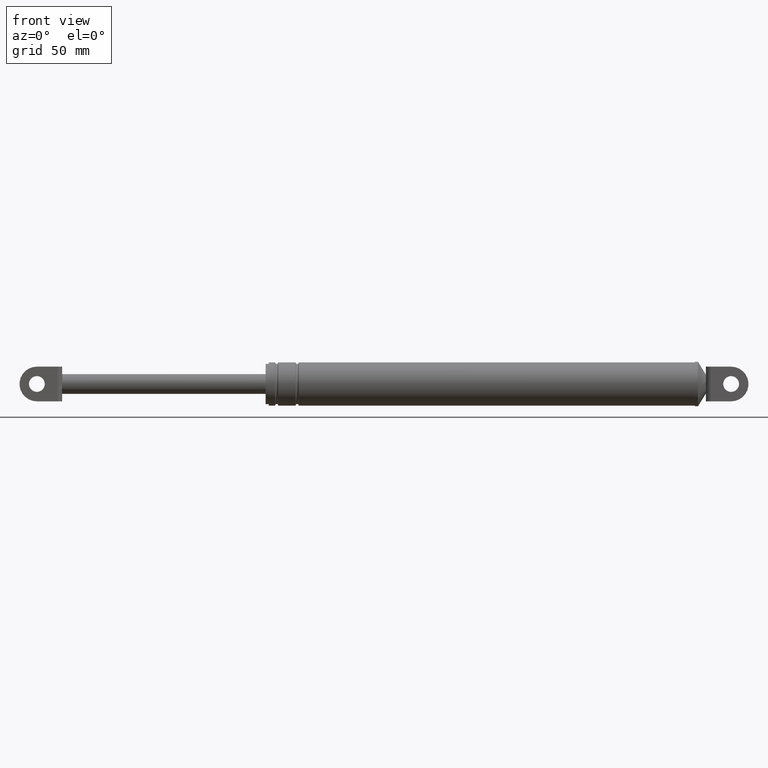
[diagram: clean part render]
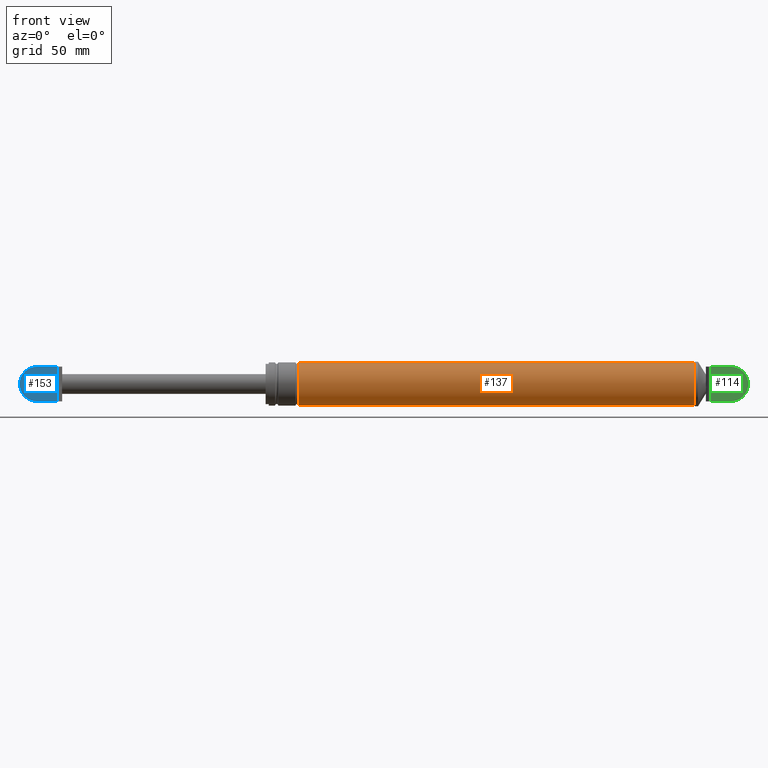
[diagram: same view with three faces highlighted in distinct colors, each labeled with its STEP entity id]
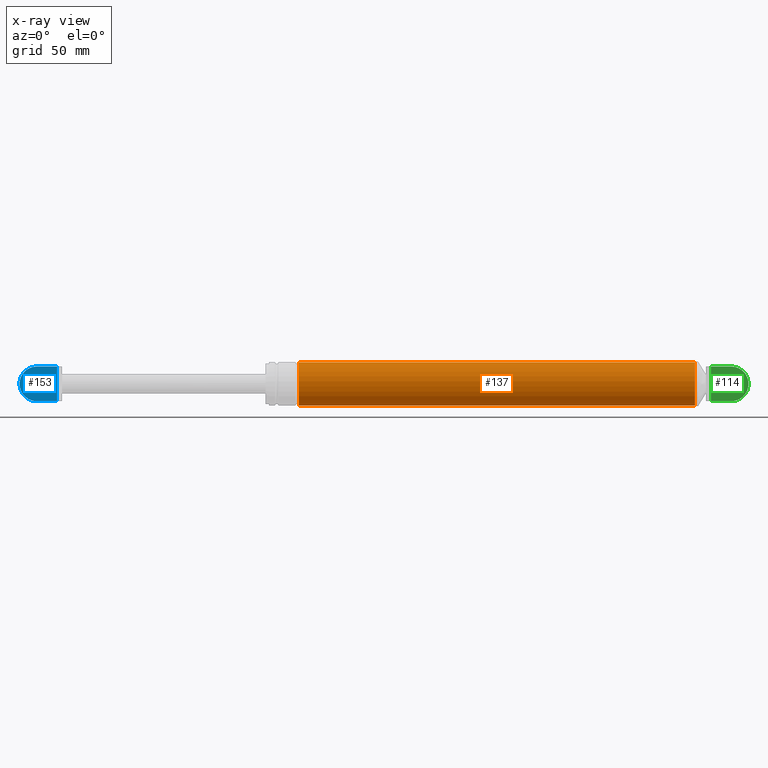
[diagram: x-ray of the same camera — body ghosted, the three highlighted faces saturated]
A machine part, front view with three faces highlighted in distinct colors.
The next image is the same camera in x-ray (body ghosted, the three faces saturated) — at least one of them is partly hidden behind the body in this view.
Their STEP definitions:

[orange] entity #137 — the highlighted cylindrical surface (edge-blend (fillet) strip) has radius 13.7 mm, axis along (-1, -0, -0).
#137=ADVANCED_FACE('',(#433),#432,.T.);
#432=CYLINDRICAL_SURFACE('',#1380,1.37000000000E+001);
#433=FACE_OUTER_BOUND('',#1381,.T.);
#1377=CARTESIAN_POINT('',(1.46675390861E+002,3.95008575888E-013,1.89728345508E+002));
#1378=DIRECTION('',(-1.00000000000E+000,-0.00000000000E+000,-0.00000000000E+000));
#1379=DIRECTION('',(0.00000000000E+000,2.88327427655E-014,1.00000000000E+000));
#1380=AXIS2_PLACEMENT_3D('',#1377,#1378,#1379);
#1381=EDGE_LOOP('',(#2235,#2236,#2237,#2238));
#2235=ORIENTED_EDGE('',*,*,#2467,.T.);
#2236=ORIENTED_EDGE('',*,*,#2490,.T.);
#2237=ORIENTED_EDGE('',*,*,#2492,.F.);
#2238=ORIENTED_EDGE('',*,*,#2491,.F.);
#2467=EDGE_CURVE('',#2895,#2894,#2902,.T.);
#2490=EDGE_CURVE('',#2894,#3045,#3053,.T.);
#2491=EDGE_CURVE('',#2895,#3046,#3059,.T.);
#2492=EDGE_CURVE('',#3046,#3045,#3065,.T.);
#2894=VERTEX_POINT('',#3822);
#2895=VERTEX_POINT('',#3823);
#2902=CIRCLE('',#3831,1.37000000000E+001);
#3045=VERTEX_POINT('',#3933);
#3046=VERTEX_POINT('',#3934);
#3053=(BOUNDED_CURVE() B_SPLINE_CURVE(1,(#3939,#3940),.UNSPECIFIED.,.F.,.F.) B_SPLINE_CURVE_WITH_KNOTS((2,2),(3.69003689851E-002,9.63099631073E-001),.UNSPECIFIED.) CURVE() GEOMETRIC_REPRESENTATION_ITEM() RATIONAL_B_SPLINE_CURVE((1.00000000000E+000,1.00000000000E+000)) REPRESENTATION_ITEM('') );
#3059=(BOUNDED_CURVE() B_SPLINE_CURVE(1,(#3941,#3942),.UNSPECIFIED.,.F.,.F.) B_SPLINE_CURVE_WITH_KNOTS((2,2),(3.69003690037E-002,9.63099630996E-001),.UNSPECIFIED.) CURVE() GEOMETRIC_REPRESENTATION_ITEM() RATIONAL_B_SPLINE_CURVE((7.50000000000E-001,7.50000000000E-001)) REPRESENTATION_ITEM('') );
#3065=CIRCLE('',#3946,1.37000000000E+001);
#3822=CARTESIAN_POINT('',(4.07675390861E+002,8.50282807126E-013,2.03428345508E+002));
#3823=CARTESIAN_POINT('',(4.07675390861E+002,-2.37694337870E-015,1.76028345508E+002));
#3828=CARTESIAN_POINT('',(4.07675390861E+002,4.23015369852E-013,1.89728345508E+002));
#3829=DIRECTION('',(-1.00000000000E+000,-2.93389539725E-015,-9.09492754956E-029));
#3830=DIRECTION('',(1.82407580425E-028,-3.11729944479E-014,-1.00000000000E+000));
#3831=AXIS2_PLACEMENT_3D('',#3828,#3829,#3830);
#3933=CARTESIAN_POINT('',(1.56675390861E+002,8.50874926073E-013,2.03428345508E+002));
#3934=CARTESIAN_POINT('',(1.56675390861E+002,-3.89268144094E-015,1.76028345508E+002));
#3939=CARTESIAN_POINT('',(4.07675390866E+002,7.90017151776E-013,2.03428345508E+002));
#3940=CARTESIAN_POINT('',(1.56675390840E+002,7.90017151776E-013,2.03428345508E+002));
#3941=CARTESIAN_POINT('',(4.07675390861E+002,0.00000000000E+000,1.76028345508E+002));
#3942=CARTESIAN_POINT('',(1.56675390861E+002,0.00000000000E+000,1.76028345508E+002));
#3943=CARTESIAN_POINT('',(1.56675390861E+002,4.22257500821E-013,1.89728345508E+002));
#3944=DIRECTION('',(-1.00000000000E+000,0.00000000000E+000,0.00000000000E+000));
#3945=DIRECTION('',(-0.00000000000E+000,-3.12283133552E-014,-1.00000000000E+000));
#3946=AXIS2_PLACEMENT_3D('',#3943,#3944,#3945);

[blue] entity #153 — the highlighted planar face has unit normal (0, -1, 0).
#153=ADVANCED_FACE('',(#594,#595),#593,.T.);
#593=PLANE('',#1545);
#594=FACE_OUTER_BOUND('',#1546,.T.);
#595=FACE_BOUND('',#1547,.T.);
#1542=CARTESIAN_POINT('',(-2.27135253810E+001,-8.69999700000E+000,2.02928345508E+002));
#1543=DIRECTION('',(0.00000000000E+000,-1.00000000000E+000,0.00000000000E+000));
#1544=DIRECTION('',(0.00000000000E+000,0.00000000000E+000,-1.00000000000E+000));
#1545=AXIS2_PLACEMENT_3D('',#1542,#1543,#1544);
#1546=EDGE_LOOP('',(#2301,#2302,#2303,#2304,#2305,#2306));
#1547=EDGE_LOOP('',(#2307,#2308));
#2301=ORIENTED_EDGE('',*,*,#2519,.F.);
#2302=ORIENTED_EDGE('',*,*,#2520,.T.);
#2303=ORIENTED_EDGE('',*,*,#2521,.T.);
#2304=ORIENTED_EDGE('',*,*,#2522,.T.);
#2305=ORIENTED_EDGE('',*,*,#2523,.T.);
#2306=ORIENTED_EDGE('',*,*,#2524,.T.);
#2307=ORIENTED_EDGE('',*,*,#2525,.F.);
#2308=ORIENTED_EDGE('',*,*,#2526,.F.);
#2519=EDGE_CURVE('',#3239,#3240,#3241,.T.);
#2520=EDGE_CURVE('',#3239,#3247,#3248,.T.);
#2521=EDGE_CURVE('',#3247,#3254,#3255,.T.);
#2522=EDGE_CURVE('',#3254,#3261,#3262,.T.);
#2523=EDGE_CURVE('',#3261,#3268,#3269,.T.);
#2524=EDGE_CURVE('',#3268,#3240,#3275,.T.);
#2525=EDGE_CURVE('',#3281,#3282,#3283,.T.);
#2526=EDGE_CURVE('',#3282,#3281,#3289,.T.);
#3239=VERTEX_POINT('',#4044);
#3240=VERTEX_POINT('',#4045);
#3241=LINE('',#4046,#4047);
#3247=VERTEX_POINT('',#4049);
#3248=LINE('',#4050,#4051);
#3254=VERTEX_POINT('',#4053);
#3255=(BOUNDED_CURVE() B_SPLINE_CURVE(3,(#4054,#4055,#4056,#4057,#4058,#4059,#4060,#4061,#4062,#4063),.UNSPECIFIED.,.F.,.F.) B_SPLINE_CURVE_WITH_KNOTS((4,2,2,2,4),(0.00000000000E+000,1.48458878572E-003,2.96917757145E-003,4.45376635717E-003,5.93835514290E-003),.UNSPECIFIED.) CURVE() GEOMETRIC_REPRESENTATION_ITEM() RATIONAL_B_SPLINE_CURVE((1.00000000000E+000,1.00000000000E+000,1.00000000000E+000,1.00000000000E+000,1.00000000000E+000,1.00000000000E+000,1.00000000000E+000,1.00000000000E+000,1.00000000000E+000,1.00000000000E+000)) REPRESENTATION_ITEM('') );
#3261=VERTEX_POINT('',#4064);
#3262=LINE('',#4065,#4066);
#3268=VERTEX_POINT('',#4068);
#3269=LINE('',#4069,#4070);
#3275=CIRCLE('',#4075,1.10000000000E+001);
#3281=VERTEX_POINT('',#4076);
#3282=VERTEX_POINT('',#4077);
#3283=CIRCLE('',#4081,5.00000000000E+000);
#3289=CIRCLE('',#4085,5.00000000000E+000);
#4044=CARTESIAN_POINT('',(3.47539086071E+000,-8.69999700000E+000,1.78728345508E+002));
#4045=CARTESIAN_POINT('',(-9.32461009922E+000,-8.69999700000E+000,1.78728345508E+002));
#4046=CARTESIAN_POINT('',(3.47539086071E+000,-8.69999700000E+000,1.78728345508E+002));
#4047=VECTOR('',#4048,1.28000009599E+001);
#4048=DIRECTION('',(-1.00000000000E+000,0.00000000000E+000,0.00000000000E+000));
#4049=CARTESIAN_POINT('',(3.47539086071E+000,-8.69999700000E+000,1.86759754428E+002));
#4050=CARTESIAN_POINT('',(3.47539086071E+000,-8.69999700000E+000,1.78728345508E+002));
#4051=VECTOR('',#4052,8.03140892004E+000);
#4052=DIRECTION('',(0.00000000000E+000,0.00000000000E+000,1.00000000000E+000));
#4053=CARTESIAN_POINT('',(3.47539086071E+000,-8.69999700000E+000,1.92696936588E+002));
#4054=CARTESIAN_POINT('',(3.47539086071E+000,-8.69999700000E+000,1.86759754428E+002));
#4055=CARTESIAN_POINT('',(3.47539086071E+000,-8.69999700000E+000,1.87254617548E+002));
#4056=CARTESIAN_POINT('',(3.50093061812E+000,-8.69999700000E+000,1.87748924030E+002));
#4057=CARTESIAN_POINT('',(3.54615375646E+000,-8.69999700000E+000,1.88737635505E+002));
#4058=CARTESIAN_POINT('',(3.56449371537E+000,-8.69999700000E+000,1.89232090770E+002));
#4059=CARTESIAN_POINT('',(3.56455327787E+000,-8.69999700000E+000,1.90221854550E+002));
#4060=CARTESIAN_POINT('',(3.54623865630E+000,-8.69999700000E+000,1.90717091524E+002));
#4061=CARTESIAN_POINT('',(3.50098538883E+000,-8.69999700000E+000,1.91706677030E+002));
#4062=CARTESIAN_POINT('',(3.47539086071E+000,-8.69999700000E+000,1.92201368021E+002));
#4063=CARTESIAN_POINT('',(3.47539086071E+000,-8.69999700000E+000,1.92696936588E+002));
#4064=CARTESIAN_POINT('',(3.47539086071E+000,-8.69999700000E+000,2.00728345508E+002));
#4065=CARTESIAN_POINT('',(3.47539086071E+000,-8.69999700000E+000,1.92696936588E+002));
#4066=VECTOR('',#4067,8.03140892005E+000);
#4067=DIRECTION('',(0.00000000000E+000,0.00000000000E+000,1.00000000000E+000));
#4068=CARTESIAN_POINT('',(-9.32461009922E+000,-8.69999700000E+000,2.00728345508E+002));
#4069=CARTESIAN_POINT('',(3.47539086071E+000,-8.69999700000E+000,2.00728345508E+002));
#4070=VECTOR('',#4071,1.28000009599E+001);
#4071=DIRECTION('',(-1.00000000000E+000,0.00000000000E+000,0.00000000000E+000));
#4072=CARTESIAN_POINT('',(-9.32460913929E+000,-8.69999700000E+000,1.89728345508E+002));
#4073=DIRECTION('',(-5.70942737161E-017,-1.00000000000E+000,-4.98241256713E-024));
#4074=DIRECTION('',(8.72664147005E-008,1.98364671701E-038,-1.00000000000E+000));
#4075=AXIS2_PLACEMENT_3D('',#4072,#4073,#4074);
#4076=CARTESIAN_POINT('',(-9.32460913929E+000,-8.69999700000E+000,1.94728345508E+002));
#4077=CARTESIAN_POINT('',(-9.32460913929E+000,-8.69999700000E+000,1.84728345508E+002));
#4078=CARTESIAN_POINT('',(-9.32460913929E+000,-8.69999700000E+000,1.89728345508E+002));
#4079=DIRECTION('',(1.25607396695E-016,-1.00000000000E+000,9.81743656071E-031));
#4080=DIRECTION('',(-4.61852778244E-015,-1.56186490739E-030,-1.00000000000E+000));
#4081=AXIS2_PLACEMENT_3D('',#4078,#4079,#4080);
#4082=CARTESIAN_POINT('',(-9.32460913929E+000,-8.69999700000E+000,1.89728345508E+002));
#4083=DIRECTION('',(1.25607396695E-016,-1.00000000000E+000,9.81743656071E-031));
#4084=DIRECTION('',(-4.61852778244E-015,-1.56186490739E-030,-1.00000000000E+000));
#4085=AXIS2_PLACEMENT_3D('',#4082,#4083,#4084);

[green] entity #114 — the highlighted planar face has unit normal (0, -1, 0).
#114=ADVANCED_FACE('',(#198,#199),#197,.T.);
#197=PLANE('',#840);
#198=FACE_OUTER_BOUND('',#841,.T.);
#199=FACE_BOUND('',#842,.T.);
#837=CARTESIAN_POINT('',(4.15452151137E+002,-8.69999700000E+000,1.76528344356E+002));
#838=DIRECTION('',(0.00000000000E+000,-1.00000000000E+000,0.00000000000E+000));
#839=DIRECTION('',(1.00000000000E+000,0.00000000000E+000,0.00000000000E+000));
#840=AXIS2_PLACEMENT_3D('',#837,#838,#839);
#841=EDGE_LOOP('',(#2119,#2120,#2121,#2122,#2123,#2124));
#842=EDGE_LOOP('',(#2125,#2126));
#2119=ORIENTED_EDGE('',*,*,#2430,.F.);
#2120=ORIENTED_EDGE('',*,*,#2431,.T.);
#2121=ORIENTED_EDGE('',*,*,#2432,.T.);
#2122=ORIENTED_EDGE('',*,*,#2433,.T.);
#2123=ORIENTED_EDGE('',*,*,#2434,.T.);
#2124=ORIENTED_EDGE('',*,*,#2435,.T.);
#2125=ORIENTED_EDGE('',*,*,#2436,.F.);
#2126=ORIENTED_EDGE('',*,*,#2437,.F.);
#2430=EDGE_CURVE('',#2651,#2652,#2653,.T.);
#2431=EDGE_CURVE('',#2651,#2659,#2660,.T.);
#2432=EDGE_CURVE('',#2659,#2666,#2667,.T.);
#2433=EDGE_CURVE('',#2666,#2673,#2674,.T.);
#2434=EDGE_CURVE('',#2673,#2680,#2681,.T.);
#2435=EDGE_CURVE('',#2680,#2652,#2687,.T.);
#2436=EDGE_CURVE('',#2693,#2694,#2695,.T.);
#2437=EDGE_CURVE('',#2694,#2693,#2701,.T.);
#2651=VERTEX_POINT('',#3664);
#2652=VERTEX_POINT('',#3665);
#2653=LINE('',#3666,#3667);
#2659=VERTEX_POINT('',#3669);
#2660=LINE('',#3670,#3671);
#2666=VERTEX_POINT('',#3673);
#2667=(BOUNDED_CURVE() B_SPLINE_CURVE(3,(#3674,#3675,#3676,#3677,#3678,#3679,#3680,#3681,#3682,#3683),.UNSPECIFIED.,.F.,.F.) B_SPLINE_CURVE_WITH_KNOTS((4,2,2,2,4),(0.00000000000E+000,1.19890467989E-003,2.39780935978E-003,3.59671403967E-003,4.79561871955E-003),.UNSPECIFIED.) CURVE() GEOMETRIC_REPRESENTATION_ITEM() RATIONAL_B_SPLINE_CURVE((1.00000000000E+000,1.00000000000E+000,1.00000000000E+000,1.00000000000E+000,1.00000000000E+000,1.00000000000E+000,1.00000000000E+000,1.00000000000E+000,1.00000000000E+000,1.00000000000E+000)) REPRESENTATION_ITEM('') );
#2673=VERTEX_POINT('',#3684);
#2674=LINE('',#3685,#3686);
#2680=VERTEX_POINT('',#3688);
#2681=LINE('',#3689,#3690);
#2687=CIRCLE('',#3695,1.10000000000E+001);
#2693=VERTEX_POINT('',#3696);
#2694=VERTEX_POINT('',#3697);
#2695=CIRCLE('',#3701,5.00000000000E+000);
#2701=CIRCLE('',#3705,5.00000000000E+000);
#3664=CARTESIAN_POINT('',(4.17875390861E+002,-8.69999700000E+000,2.00728345508E+002));
#3665=CARTESIAN_POINT('',(4.30675389901E+002,-8.69999700000E+000,2.00728345508E+002));
#3666=CARTESIAN_POINT('',(4.17875390861E+002,-8.69999700000E+000,2.00728345508E+002));
#3667=VECTOR('',#3668,1.27999990401E+001);
#3668=DIRECTION('',(1.00000000000E+000,0.00000000000E+000,0.00000000000E+000));
#3669=CARTESIAN_POINT('',(4.17875390861E+002,-8.69999700000E+000,1.92126268150E+002));
#3670=CARTESIAN_POINT('',(4.17875390861E+002,-8.69999700000E+000,2.00728345508E+002));
#3671=VECTOR('',#3672,8.60207735738E+000);
#3672=DIRECTION('',(0.00000000000E+000,0.00000000000E+000,-1.00000000000E+000));
#3673=CARTESIAN_POINT('',(4.17875390861E+002,-8.69999700000E+000,1.87330422865E+002));
#3674=CARTESIAN_POINT('',(4.17875390861E+002,-8.69999700000E+000,1.92126268150E+002));
#3675=CARTESIAN_POINT('',(4.17875390861E+002,-8.69999700000E+000,1.91726612064E+002));
#3676=CARTESIAN_POINT('',(4.17863765516E+002,-8.69999700000E+000,1.91327075704E+002));
#3677=CARTESIAN_POINT('',(4.17843906589E+002,-8.69999700000E+000,1.90527968054E+002));
#3678=CARTESIAN_POINT('',(4.17836091008E+002,-8.69999700000E+000,1.90128392458E+002));
#3679=CARTESIAN_POINT('',(4.17836082021E+002,-8.69999700000E+000,1.89329080379E+002));
#3680=CARTESIAN_POINT('',(4.17843892693E+002,-8.69999700000E+000,1.88929322172E+002));
#3681=CARTESIAN_POINT('',(4.17863756165E+002,-8.69999700000E+000,1.88129951572E+002));
#3682=CARTESIAN_POINT('',(4.17875390861E+002,-8.69999700000E+000,1.87730298994E+002));
#3683=CARTESIAN_POINT('',(4.17875390861E+002,-8.69999700000E+000,1.87330422865E+002));
#3684=CARTESIAN_POINT('',(4.17875390861E+002,-8.69999700000E+000,1.78728345508E+002));
#3685=CARTESIAN_POINT('',(4.17875390861E+002,-8.69999700000E+000,1.87330422865E+002));
#3686=VECTOR('',#3687,8.60207735738E+000);
#3687=DIRECTION('',(0.00000000000E+000,0.00000000000E+000,-1.00000000000E+000));
#3688=CARTESIAN_POINT('',(4.30675389901E+002,-8.69999700000E+000,1.78728345508E+002));
#3689=CARTESIAN_POINT('',(4.17875390861E+002,-8.69999700000E+000,1.78728345508E+002));
#3690=VECTOR('',#3691,1.27999990401E+001);
#3691=DIRECTION('',(1.00000000000E+000,0.00000000000E+000,0.00000000000E+000));
#3692=CARTESIAN_POINT('',(4.30675390861E+002,-8.69999700000E+000,1.89728345508E+002));
#3693=DIRECTION('',(0.00000000000E+000,-1.00000000000E+000,-0.00000000000E+000));
#3694=DIRECTION('',(-8.72664973428E-008,0.00000000000E+000,-1.00000000000E+000));
#3695=AXIS2_PLACEMENT_3D('',#3692,#3693,#3694);
#3696=CARTESIAN_POINT('',(4.30675390861E+002,-8.69999700000E+000,1.84728345508E+002));
#3697=CARTESIAN_POINT('',(4.30675390861E+002,-8.69999700000E+000,1.94728345508E+002));
#3698=CARTESIAN_POINT('',(4.30675390861E+002,-8.69999700000E+000,1.89728345508E+002));
#3699=DIRECTION('',(1.25607396695E-016,-1.00000000000E+000,0.00000000000E+000));
#3700=DIRECTION('',(1.22460635382E-016,1.53819616079E-032,1.00000000000E+000));
#3701=AXIS2_PLACEMENT_3D('',#3698,#3699,#3700);
#3702=CARTESIAN_POINT('',(4.30675390861E+002,-8.69999700000E+000,1.89728345508E+002));
#3703=DIRECTION('',(1.25607396695E-016,-1.00000000000E+000,0.00000000000E+000));
#3704=DIRECTION('',(1.22460635382E-016,1.53819616079E-032,1.00000000000E+000));
#3705=AXIS2_PLACEMENT_3D('',#3702,#3703,#3704);